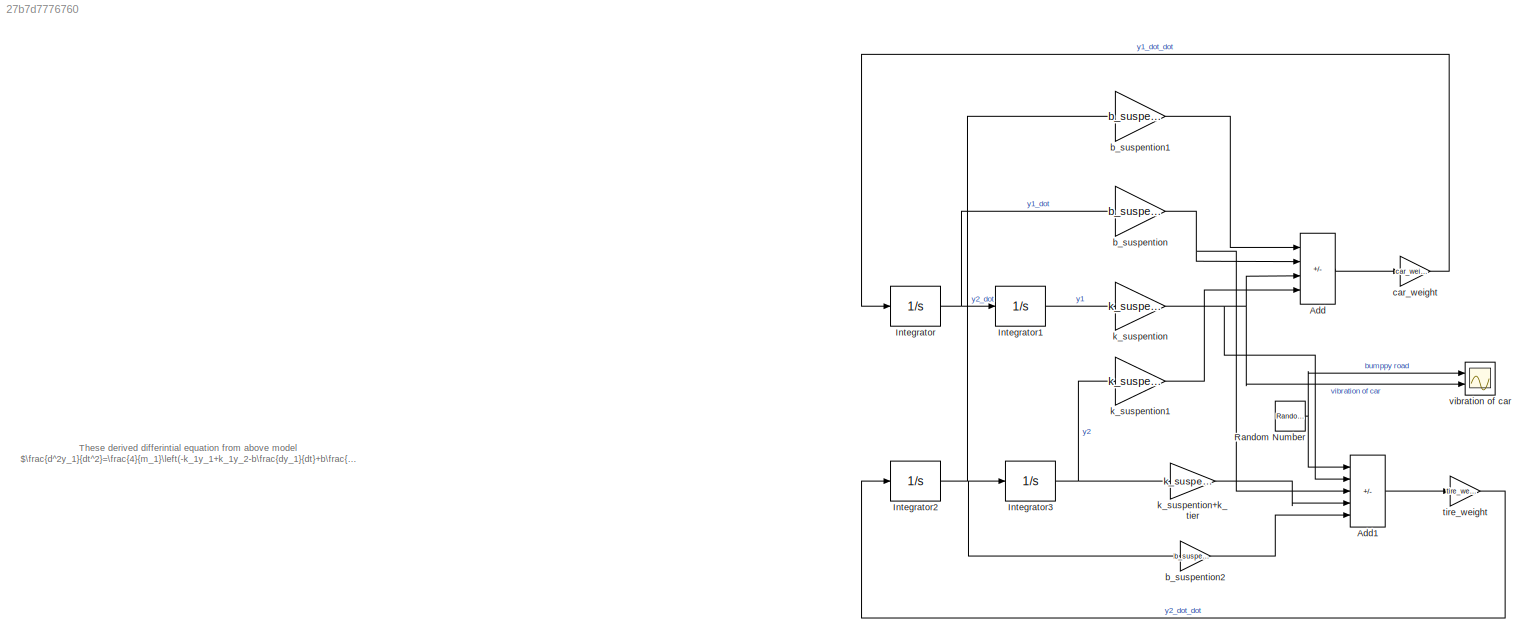
MODEL slx_27b7d7776760
KIND model
CONFIG AbsTol = auto
CONFIG EnableMultiTasking = off
CONFIG FixedStep = auto
CONFIG MaxStep = 0.01
CONFIG MinStep = auto
CONFIG RelTol = 1e-3
CONFIG SampleTimeConstraint = Unconstrained
CONFIG Solver = VariableStepAuto
CONFIG SolverName = VariableStepAuto
CONFIG StartTime = 0.0
CONFIG StopTime = 10.0
WORKSPACE source: mxarray member
WORKSPACE b_suspention = 50
WORKSPACE car_weight = 1000
WORKSPACE k_suspention = 50
WORKSPACE k_tire = 20
WORKSPACE tire_weight = 20
BLOCK [Sum] Add
  IconShape = rectangular
  Inputs = +--+
  Ports = [4, 1]
BLOCK [Sum] Add1
  IconShape = rectangular
  Inputs = +++--
  Ports = [5, 1]
BLOCK [Integrator] Integrator
  Ports = [1, 1]
BLOCK [Integrator] Integrator1
  Ports = [1, 1]
BLOCK [Integrator] Integrator2
  Ports = [1, 1]
BLOCK [Integrator] Integrator3
  Ports = [1, 1]
BLOCK [RandomNumber] Random Number
  SampleTime = 0.1
BLOCK [Gain] b_suspention
  Gain = b_suspention
BLOCK [Gain] b_suspention1
  Gain = b_suspention
BLOCK [Gain] b_suspention2
  Gain = b_suspention
BLOCK [Gain] car_weight
  Gain = car_weight/4
BLOCK [Gain] k_suspention
  Gain = k_suspention
BLOCK [Gain] k_suspention+k_tier
  Gain = k_suspention+k_tire
BLOCK [Gain] k_suspention1
  Gain = k_suspention
BLOCK [Gain] tire_weight
  Gain = tire_weight
BLOCK [Scope] vibration of car
  Floating = off
  NumInputPorts = 2
  Ports = [2]
  ScopeSpecificationString = Simulink.scopes.TimeScopeBlockCfg('CurrentConfiguration', extmgr.ConfigurationSet(extmgr.Configuration('Core','General UI',true),extmgr.Configuration('Core','Source UI',true),extmgr.Configuration('Sources','WiredSimulink',true),extmgr.Configuration('Visuals','Time Domain',true,'SerializedDisplays',{struct('MinYLimReal','-3.04551','MaxYLimReal','2.58116','YLabelReal','','MinYLimMag','0.00000','MaxY...<+1912ch>
ANNOTATION (root): These derived differintial equation from above model $\frac{d^2y_1}{dt^2}=\frac{4}{m_1}\left(-k_1y_1+k_1y_2-b\frac{dy_1}{dt}+b\frac{dy_2}{dt}\right)\\\frac{d^2y_2}{dt^2}=\frac{1}{m2}\left(f(t)-y_2(k_1+k_2)+k_1y_1-b\frac{dy_2}{dt}+b\frac{dy_1}{dt}\right)$
LINE Add1:1 -> tire_weight:1
LINE Add:1 -> car_weight:1
LINE Integrator1:1 -> k_suspention:1
NET Integrator2:1 -> Integrator3:1, b_suspention1:1, b_suspention2:1
NET Integrator3:1 -> k_suspention+k_tier:1, k_suspention1:1
NET Integrator:1 -> Integrator1:1, b_suspention:1
NET Random Number:1 -> Add1:1, vibration of car:1
LINE b_suspention1:1 -> Add:1
LINE b_suspention2:1 -> Add1:5
NET b_suspention:1 -> Add1:3, Add:2
LINE car_weight:1 -> Integrator:1
LINE k_suspention+k_tier:1 -> Add1:4
LINE k_suspention1:1 -> Add:4
NET k_suspention:1 -> Add1:2, Add:3, vibration of car:2
LINE tire_weight:1 -> Integrator2:1
note: NET lines group one-source signal fan-out (src -> all destinations, sorted); 1:1 wires keep LINE
